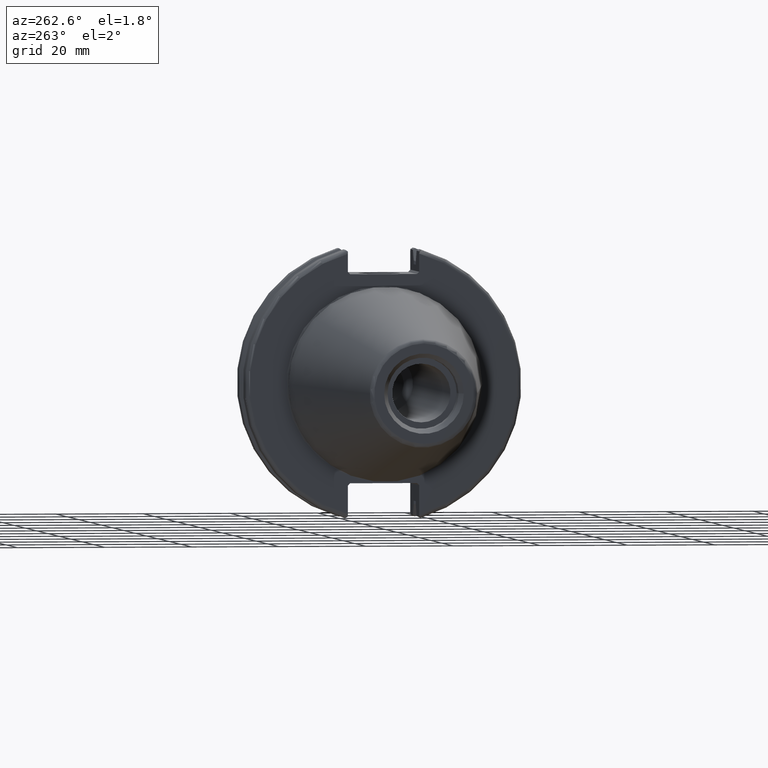
[diagram: clean part render]
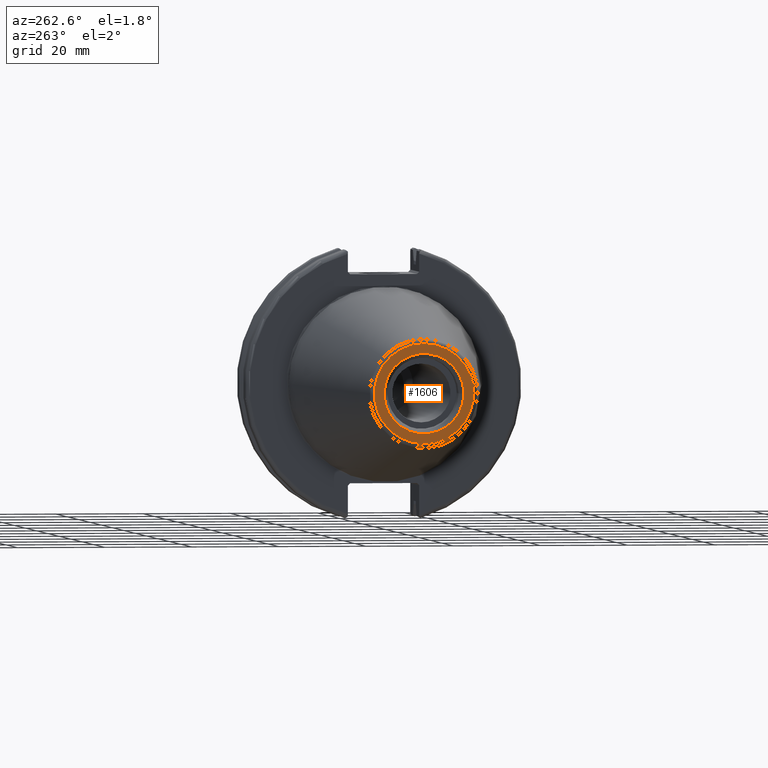
[diagram: same view with one face highlighted and labeled with its STEP entity id]
A machine part, auxiliary view. The second image highlights one B-rep face of the part: STEP entity #1606.
In plain terms, the highlighted planar face has unit normal (-1, 0, 0).
Its self-contained STEP definition (entity closure, byte-faithful):
#124=FACE_BOUND('',#328,.T.);
#146=PLANE('',#1808);
#226=FACE_OUTER_BOUND('',#327,.T.);
#327=EDGE_LOOP('',(#1250));
#328=EDGE_LOOP('',(#1251));
#651=CIRCLE('',#1807,11.4071305970304);
#652=CIRCLE('',#1809,9.15);
#781=VERTEX_POINT('',#2748);
#782=VERTEX_POINT('',#2752);
#961=EDGE_CURVE('',#781,#781,#651,.T.);
#962=EDGE_CURVE('',#782,#782,#652,.T.);
#1250=ORIENTED_EDGE('',*,*,#961,.F.);
#1251=ORIENTED_EDGE('',*,*,#962,.T.);
#1606=ADVANCED_FACE('',(#226,#124),#146,.T.);
#1807=AXIS2_PLACEMENT_3D('',#2750,#2106,#2107);
#1808=AXIS2_PLACEMENT_3D('',#2751,#2108,#2109);
#1809=AXIS2_PLACEMENT_3D('',#2753,#2110,#2111);
#2106=DIRECTION('center_axis',(1.,0.,0.));
#2107=DIRECTION('ref_axis',(0.,-1.,1.83697019872103E-16));
#2108=DIRECTION('center_axis',(-1.,0.,0.));
#2109=DIRECTION('ref_axis',(0.,0.,1.));
#2110=DIRECTION('center_axis',(1.,0.,0.));
#2111=DIRECTION('ref_axis',(0.,0.,-1.));
#2748=CARTESIAN_POINT('',(-68.25,-1.39697059731091E-15,11.4071305970304));
#2750=CARTESIAN_POINT('Origin',(-68.25,0.,0.));
#2751=CARTESIAN_POINT('Origin',(-68.25,12.271875,0.));
#2752=CARTESIAN_POINT('',(-68.25,-9.15,-1.12055182121983E-15));
#2753=CARTESIAN_POINT('Origin',(-68.25,0.,0.));